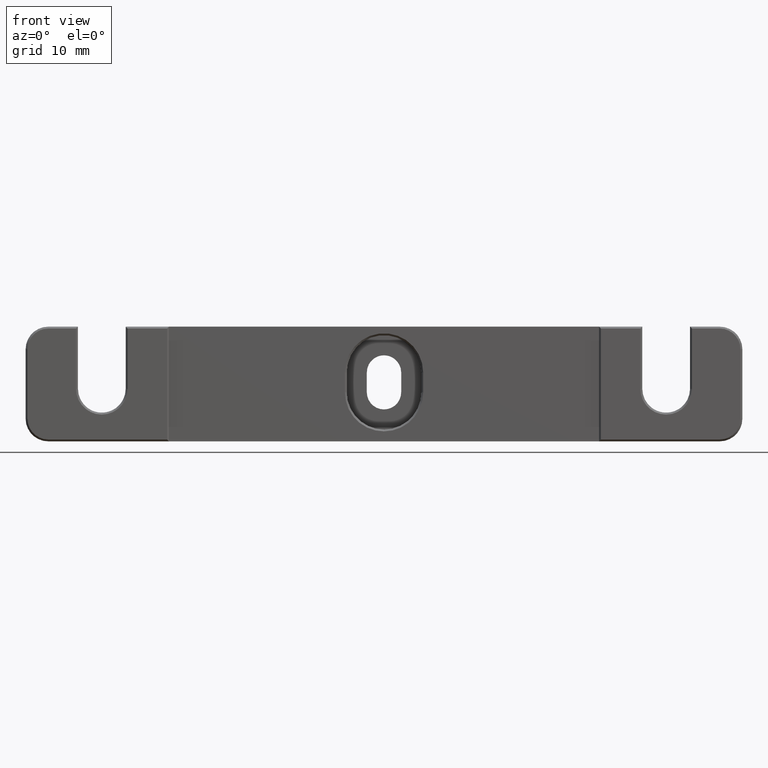
[diagram: clean part render]
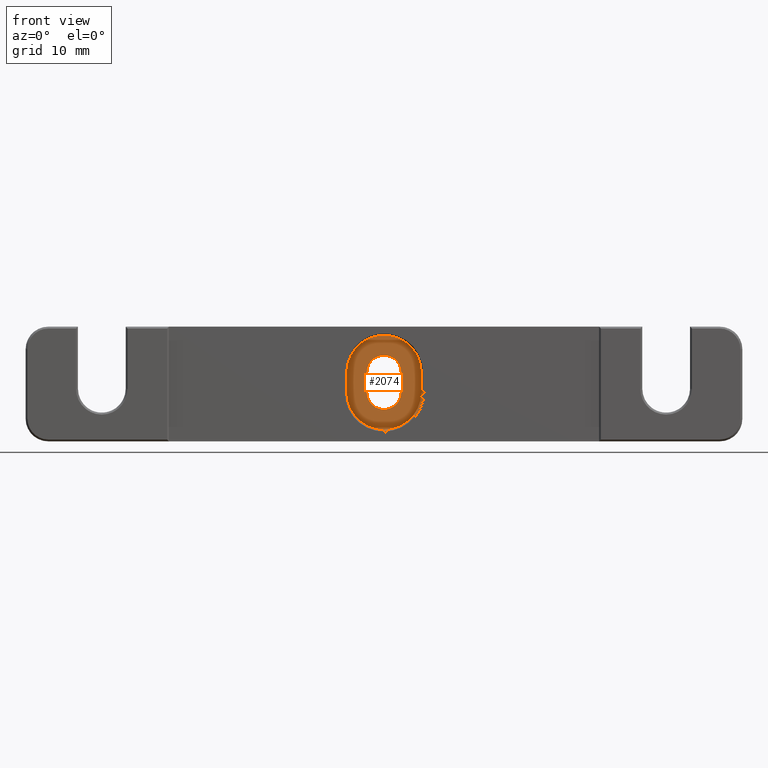
[diagram: same view with one face highlighted and labeled with its STEP entity id]
A machine part, front view. The second image highlights one B-rep face of the part: STEP entity #2074.
In plain terms, the highlighted planar face has unit normal (0, 1, 0).
Its self-contained STEP definition (entity closure, byte-faithful):
#103 = DIRECTION ( 'NONE',  ( 1.836970198721029688E-16, -0.000000000000000000, -1.000000000000000000 ) ) ;
#163 = LINE ( 'NONE', #2206, #3543 ) ;
#165 = AXIS2_PLACEMENT_3D ( 'NONE', #950, #613, #1129 ) ;
#244 = VECTOR ( 'NONE', #779, 1000.000000000000000 ) ;
#294 = DIRECTION ( 'NONE',  ( 1.836970198721029688E-16, -0.000000000000000000, -1.000000000000000000 ) ) ;
#315 = CARTESIAN_POINT ( 'NONE',  ( 2.146193515505736735E-16, 5.079999999999999183, -3.380000000000001226 ) ) ;
#574 = DIRECTION ( 'NONE',  ( 0.000000000000000000, 0.000000000000000000, -1.000000000000000000 ) ) ;
#595 = CARTESIAN_POINT ( 'NONE',  ( -4.955000000000000071, 5.079999999999999183, 1.534999999999997256 ) ) ;
#613 = DIRECTION ( 'NONE',  ( -0.000000000000000000, -1.000000000000000000, -0.000000000000000000 ) ) ;
#666 = FACE_BOUND ( 'NONE', #4768, .T. ) ;
#683 = CIRCLE ( 'NONE', #2963, 2.284999999999999698 ) ;
#722 = CARTESIAN_POINT ( 'NONE',  ( -2.685038107130569228E-16, 5.079999999999999183, 1.534999999999998588 ) ) ;
#760 = CARTESIAN_POINT ( 'NONE',  ( 2.146193515505736735E-16, 5.079999999999999183, -1.095000000000000862 ) ) ;
#779 = DIRECTION ( 'NONE',  ( 1.836970198721029688E-16, -0.000000000000000000, -1.000000000000000000 ) ) ;
#853 = CARTESIAN_POINT ( 'NONE',  ( 4.954999999999999183, 5.079999999999999183, 1.534999999999999032 ) ) ;
#856 = CIRCLE ( 'NONE', #1199, 4.954999999999999183 ) ;
#883 = VERTEX_POINT ( 'NONE', #3881 ) ;
#920 = DIRECTION ( 'NONE',  ( -0.000000000000000000, -1.000000000000000000, -0.000000000000000000 ) ) ;
#950 = CARTESIAN_POINT ( 'NONE',  ( 2.146193515505736735E-16, 5.079999999999999183, -1.095000000000000862 ) ) ;
#990 = CIRCLE ( 'NONE', #3422, 2.284999999999999698 ) ;
#1129 = DIRECTION ( 'NONE',  ( 0.000000000000000000, 0.000000000000000000, -1.000000000000000000 ) ) ;
#1159 = AXIS2_PLACEMENT_3D ( 'NONE', #3820, #1543, #4543 ) ;
#1199 = AXIS2_PLACEMENT_3D ( 'NONE', #2381, #920, #574 ) ;
#1253 = ORIENTED_EDGE ( 'NONE', *, *, #2855, .T. ) ;
#1373 = VERTEX_POINT ( 'NONE', #2922 ) ;
#1453 = DIRECTION ( 'NONE',  ( 0.000000000000000000, 0.000000000000000000, -1.000000000000000000 ) ) ;
#1487 = EDGE_LOOP ( 'NONE', ( #4478, #3345, #3073, #1253, #2502 ) ) ;
#1543 = DIRECTION ( 'NONE',  ( 0.000000000000000000, 1.000000000000000000, 0.000000000000000000 ) ) ;
#1691 = DIRECTION ( 'NONE',  ( 0.000000000000000000, 0.000000000000000000, -1.000000000000000000 ) ) ;
#1695 = CARTESIAN_POINT ( 'NONE',  ( -2.284999999999998810, 5.079999999999999183, 1.534999999999997700 ) ) ;
#1821 = EDGE_CURVE ( 'NONE', #3758, #883, #3527, .T. ) ;
#1866 = VERTEX_POINT ( 'NONE', #2790 ) ;
#1914 = DIRECTION ( 'NONE',  ( 0.000000000000000000, 0.000000000000000000, -1.000000000000000000 ) ) ;
#2074 = ADVANCED_FACE ( 'NONE', ( #666, #4218 ), #3072, .F. ) ;
#2116 = LINE ( 'NONE', #853, #2986 ) ;
#2206 = CARTESIAN_POINT ( 'NONE',  ( -2.284999999999998810, 5.079999999999999183, 1.534999999999997700 ) ) ;
#2293 = LINE ( 'NONE', #2584, #244 ) ;
#2333 = EDGE_CURVE ( 'NONE', #2931, #3275, #990, .T. ) ;
#2365 = EDGE_CURVE ( 'NONE', #3089, #3275, #2293, .T. ) ;
#2381 = CARTESIAN_POINT ( 'NONE',  ( -2.685038107130569228E-16, 5.079999999999999183, 1.534999999999998588 ) ) ;
#2502 = ORIENTED_EDGE ( 'NONE', *, *, #1821, .T. ) ;
#2584 = CARTESIAN_POINT ( 'NONE',  ( 2.284999999999999698, 5.079999999999999183, 1.534999999999998588 ) ) ;
#2718 = VECTOR ( 'NONE', #294, 1000.000000000000000 ) ;
#2725 = CIRCLE ( 'NONE', #165, 4.954999999999999183 ) ;
#2745 = VERTEX_POINT ( 'NONE', #3286 ) ;
#2759 = CARTESIAN_POINT ( 'NONE',  ( -4.955000000000000071, 5.079999999999999183, 1.534999999999997256 ) ) ;
#2790 = CARTESIAN_POINT ( 'NONE',  ( 2.146193515505736735E-16, 5.079999999999999183, -6.049999999999999822 ) ) ;
#2802 = DIRECTION ( 'NONE',  ( 0.000000000000000000, 0.000000000000000000, -1.000000000000000000 ) ) ;
#2829 = CARTESIAN_POINT ( 'NONE',  ( 2.146193515505736735E-16, 5.079999999999999183, -1.095000000000000862 ) ) ;
#2855 = EDGE_CURVE ( 'NONE', #1373, #3758, #856, .T. ) ;
#2922 = CARTESIAN_POINT ( 'NONE',  ( 4.954999999999999183, 5.079999999999999183, 1.534999999999999032 ) ) ;
#2931 = VERTEX_POINT ( 'NONE', #315 ) ;
#2963 = AXIS2_PLACEMENT_3D ( 'NONE', #722, #4412, #1453 ) ;
#2970 = ORIENTED_EDGE ( 'NONE', *, *, #3343, .F. ) ;
#2986 = VECTOR ( 'NONE', #103, 1000.000000000000000 ) ;
#3026 = ORIENTED_EDGE ( 'NONE', *, *, #2365, .T. ) ;
#3047 = CARTESIAN_POINT ( 'NONE',  ( 2.284999999999999698, 5.079999999999999183, 1.534999999999998588 ) ) ;
#3064 = VERTEX_POINT ( 'NONE', #4347 ) ;
#3072 = PLANE ( 'NONE',  #1159 ) ;
#3073 = ORIENTED_EDGE ( 'NONE', *, *, #4419, .F. ) ;
#3089 = VERTEX_POINT ( 'NONE', #3047 ) ;
#3176 = CARTESIAN_POINT ( 'NONE',  ( 2.146193515505736735E-16, 5.079999999999999183, -1.095000000000000862 ) ) ;
#3265 = CIRCLE ( 'NONE', #3804, 4.954999999999999183 ) ;
#3275 = VERTEX_POINT ( 'NONE', #4568 ) ;
#3283 = AXIS2_PLACEMENT_3D ( 'NONE', #760, #3351, #1914 ) ;
#3286 = CARTESIAN_POINT ( 'NONE',  ( 4.955000000000000071, 5.079999999999999183, -1.094999999999999973 ) ) ;
#3336 = DIRECTION ( 'NONE',  ( 1.836970198721029688E-16, -0.000000000000000000, -1.000000000000000000 ) ) ;
#3343 = EDGE_CURVE ( 'NONE', #3089, #4358, #683, .T. ) ;
#3345 = ORIENTED_EDGE ( 'NONE', *, *, #3424, .T. ) ;
#3351 = DIRECTION ( 'NONE',  ( -0.000000000000000000, -1.000000000000000000, -0.000000000000000000 ) ) ;
#3422 = AXIS2_PLACEMENT_3D ( 'NONE', #3176, #4322, #2802 ) ;
#3424 = EDGE_CURVE ( 'NONE', #1866, #2745, #2725, .T. ) ;
#3527 = LINE ( 'NONE', #595, #2718 ) ;
#3543 = VECTOR ( 'NONE', #3336, 1000.000000000000000 ) ;
#3750 = ORIENTED_EDGE ( 'NONE', *, *, #4718, .F. ) ;
#3758 = VERTEX_POINT ( 'NONE', #2759 ) ;
#3772 = ORIENTED_EDGE ( 'NONE', *, *, #4687, .F. ) ;
#3804 = AXIS2_PLACEMENT_3D ( 'NONE', #2829, #3979, #1691 ) ;
#3820 = CARTESIAN_POINT ( 'NONE',  ( 2.285000000000000142, 5.079999999999999183, -1.095000000000000862 ) ) ;
#3881 = CARTESIAN_POINT ( 'NONE',  ( -4.954999999999999183, 5.079999999999999183, -1.095000000000001750 ) ) ;
#3915 = ORIENTED_EDGE ( 'NONE', *, *, #2333, .F. ) ;
#3979 = DIRECTION ( 'NONE',  ( -0.000000000000000000, -1.000000000000000000, -0.000000000000000000 ) ) ;
#4218 = FACE_OUTER_BOUND ( 'NONE', #1487, .T. ) ;
#4299 = CIRCLE ( 'NONE', #3283, 2.284999999999999698 ) ;
#4322 = DIRECTION ( 'NONE',  ( -0.000000000000000000, -1.000000000000000000, -0.000000000000000000 ) ) ;
#4347 = CARTESIAN_POINT ( 'NONE',  ( -2.284999999999998366, 5.079999999999999183, -1.095000000000001306 ) ) ;
#4358 = VERTEX_POINT ( 'NONE', #1695 ) ;
#4412 = DIRECTION ( 'NONE',  ( -0.000000000000000000, -1.000000000000000000, -0.000000000000000000 ) ) ;
#4419 = EDGE_CURVE ( 'NONE', #1373, #2745, #2116, .T. ) ;
#4446 = EDGE_CURVE ( 'NONE', #883, #1866, #3265, .T. ) ;
#4478 = ORIENTED_EDGE ( 'NONE', *, *, #4446, .T. ) ;
#4543 = DIRECTION ( 'NONE',  ( 0.000000000000000000, -0.000000000000000000, 1.000000000000000000 ) ) ;
#4568 = CARTESIAN_POINT ( 'NONE',  ( 2.285000000000000142, 5.079999999999999183, -1.095000000000000417 ) ) ;
#4687 = EDGE_CURVE ( 'NONE', #3064, #2931, #4299, .T. ) ;
#4718 = EDGE_CURVE ( 'NONE', #4358, #3064, #163, .T. ) ;
#4768 = EDGE_LOOP ( 'NONE', ( #3772, #3750, #2970, #3026, #3915 ) ) ;